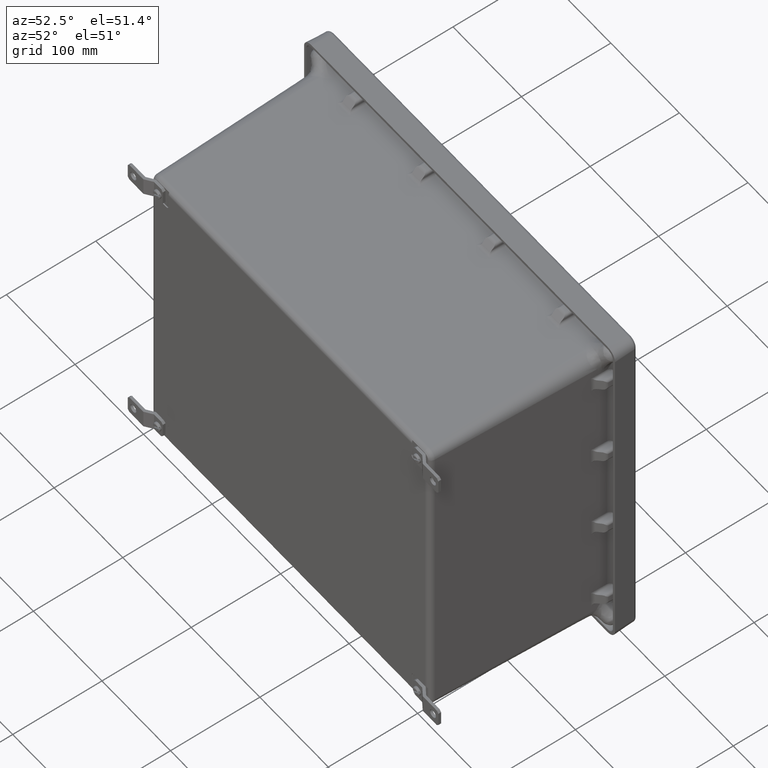
[diagram: clean part render]
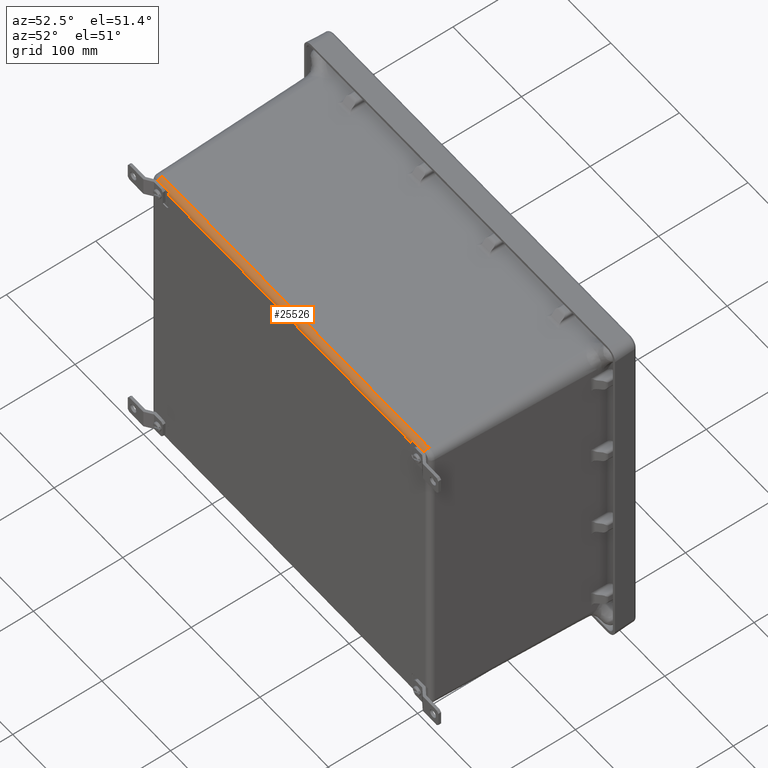
[diagram: same view with one face highlighted and labeled with its STEP entity id]
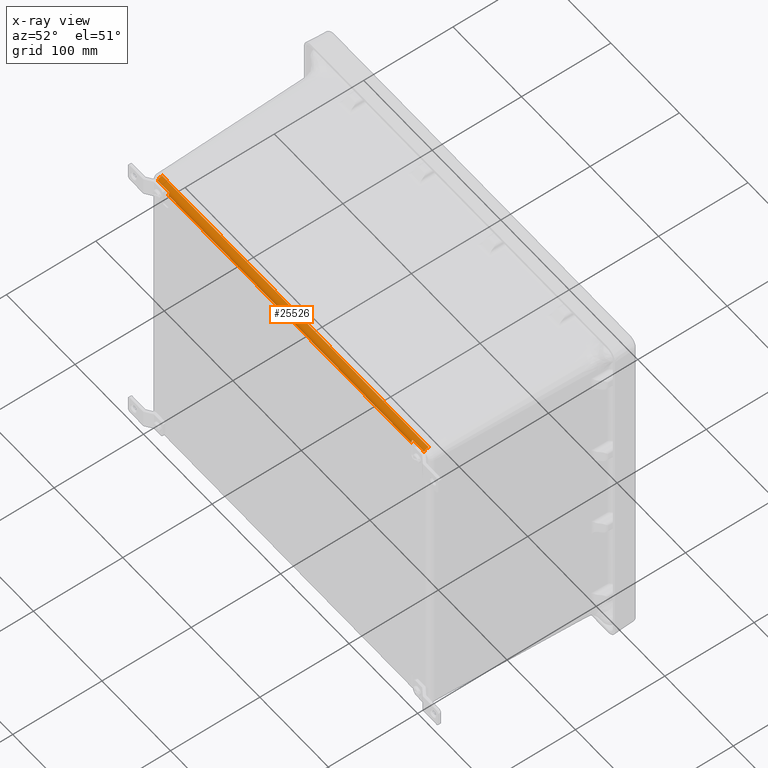
[diagram: x-ray of the same camera — body ghosted, the highlighted face saturated]
A machine part, auxiliary view. The second image highlights one B-rep face of the part: STEP entity #25526.
The next image is the same camera in x-ray: the body ghosted, the highlighted face saturated — about 0% of this face is hidden behind the body in this view.
In plain terms, the highlighted cylindrical surface (edge-blend (fillet) strip) has radius 6.3589 mm, axis along (1, 0, 0).
Its self-contained STEP definition (entity closure, byte-faithful):
#632 = DIRECTION ( 'NONE',  ( -1.000000000000000000, 0.0000000000000000000, 0.0000000000000000000 ) ) ;
#787 = CARTESIAN_POINT ( 'NONE',  ( 7.003556353495952200, -8.086828759219074000, 6.956214141704014900 ) ) ;
#1248 = EDGE_LOOP ( 'NONE', ( #27201, #11127, #38235, #30151, #4451, #39150, #34768, #22328, #7149, #9311 ) ) ;
#1261 = CARTESIAN_POINT ( 'NONE',  ( -6.972486109159942400, -8.117299500526156600, 6.893700618458757900 ) ) ;
#2348 = VERTEX_POINT ( 'NONE', #30682 ) ;
#2646 = CARTESIAN_POINT ( 'NONE',  ( -6.982625934075378500, -8.095400092067073700, 6.942602537483478100 ) ) ;
#3176 = VERTEX_POINT ( 'NONE', #3581 ) ;
#3581 = CARTESIAN_POINT ( 'NONE',  ( 6.971376468912849200, -8.129555159219075100, 6.816330035305039600 ) ) ;
#4155 = CARTESIAN_POINT ( 'NONE',  ( 6.972938806892803300, -8.112777249680180000, 6.906693396633935200 ) ) ;
#4451 = ORIENTED_EDGE ( 'NONE', *, *, #16183, .F. ) ;
#5128 = VERTEX_POINT ( 'NONE', #26295 ) ;
#6149 = CARTESIAN_POINT ( 'NONE',  ( -6.978659044398678900, -8.100049798537586600, 6.934286615420234900 ) ) ;
#6815 = EDGE_CURVE ( 'NONE', #41769, #33632, #19702, .T. ) ;
#6894 =( BOUNDED_CURVE ( )  B_SPLINE_CURVE ( 3, ( #24584, #38605, #7207, #31712 ),
 .UNSPECIFIED., .F., .F. ) 
 B_SPLINE_CURVE_WITH_KNOTS ( ( 4, 4 ),
 ( 3.141592653589793100, 3.455786269056639000 ),
 .UNSPECIFIED. ) 
 CURVE ( )  GEOMETRIC_REPRESENTATION_ITEM ( )  RATIONAL_B_SPLINE_CURVE ( ( 1.000000000000000000, 0.9917904357860588500, 0.9917904357860588500, 1.000000000000000000 ) ) 
 REPRESENTATION_ITEM ( '' )  );
#7116 = CARTESIAN_POINT ( 'NONE',  ( 7.654649388251301400, -7.879205159219074200, 6.816330035305038700 ) ) ;
#7149 = ORIENTED_EDGE ( 'NONE', *, *, #17794, .T. ) ;
#7207 = CARTESIAN_POINT ( 'NONE',  ( 6.971714314729673000, -8.125436124172049200, 6.868661592404324200 ) ) ;
#7650 = CARTESIAN_POINT ( 'NONE',  ( 6.975661914631031900, -8.104637451952134700, 6.925415407708426200 ) ) ;
#8164 = VECTOR ( 'NONE', #8588, 39.37007874015748100 ) ;
#8290 = CARTESIAN_POINT ( 'NONE',  ( -7.654753811748699700, -7.887942248218545100, 7.066527528849270800 ) ) ;
#8582 = EDGE_CURVE ( 'NONE', #19202, #10032, #11799, .T. ) ;
#8588 = DIRECTION ( 'NONE',  ( -1.000000000000000000, -0.0000000000000000000, -0.0000000000000000000 ) ) ;
#9018 = DIRECTION ( 'NONE',  ( 1.000000000000000000, 0.0000000000000000000, 0.0000000000000000000 ) ) ;
#9202 = VECTOR ( 'NONE', #42684, 39.37007874015748100 ) ;
#9311 = ORIENTED_EDGE ( 'NONE', *, *, #42889, .F. ) ;
#9514 = CARTESIAN_POINT ( 'NONE',  ( -7.000145819980889300, -8.086828759219075700, 6.956214141704017500 ) ) ;
#9676 = CARTESIAN_POINT ( 'NONE',  ( -6.974602295865307300, -8.107516257447240800, 6.919264874336311900 ) ) ;
#10032 = VERTEX_POINT ( 'NONE', #40392 ) ;
#10660 = DIRECTION ( 'NONE',  ( -4.364846005455179700E-015, 0.0000000000000000000, 1.000000000000000000 ) ) ;
#11127 = ORIENTED_EDGE ( 'NONE', *, *, #39022, .T. ) ;
#11191 = CARTESIAN_POINT ( 'NONE',  ( 6.979694306122461900, -8.098505463008042000, 6.937128812764942900 ) ) ;
#11799 = LINE ( 'NONE', #30050, #37561 ) ;
#12547 = DIRECTION ( 'NONE',  ( 1.000000000000000000, 0.0000000000000000000, 0.0000000000000000000 ) ) ;
#12668 = CARTESIAN_POINT ( 'NONE',  ( -6.971480892410249400, -8.129555159219075100, 6.816330035305039600 ) ) ;
#13230 = CARTESIAN_POINT ( 'NONE',  ( -6.972661029666634000, -8.115166859949830800, 6.900263444180983400 ) ) ;
#14730 = CARTESIAN_POINT ( 'NONE',  ( 6.984205690217064200, -8.093842431360510400, 6.945224285214958800 ) ) ;
#16095 = CARTESIAN_POINT ( 'NONE',  ( -7.654753811748699700, -8.086828759219074000, 6.956214141704014900 ) ) ;
#16183 = EDGE_CURVE ( 'NONE', #33632, #2348, #28969, .T. ) ;
#17794 = EDGE_CURVE ( 'NONE', #27839, #45174, #44035, .T. ) ;
#17900 = CYLINDRICAL_SURFACE ( 'NONE', #42038, 0.2503500000000002400 ) ;
#18149 = LINE ( 'NONE', #16095, #44899 ) ;
#18307 = CARTESIAN_POINT ( 'NONE',  ( 6.990829619978742700, -8.089539422577726000, 6.952117037906961400 ) ) ;
#18560 = CARTESIAN_POINT ( 'NONE',  ( -7.654753811748699700, -7.879205159219074200, 6.816330035305039600 ) ) ;
#19202 = VERTEX_POINT ( 'NONE', #37542 ) ;
#19702 = CIRCLE ( 'NONE', #25431, 0.2503500000000002400 ) ;
#20165 = CARTESIAN_POINT ( 'NONE',  ( -6.990910503601240200, -8.089550335083712800, 6.952100209996119800 ) ) ;
#21314 = EDGE_CURVE ( 'NONE', #41769, #5128, #18149, .T. ) ;
#21697 = CARTESIAN_POINT ( 'NONE',  ( -7.654753811748699700, -7.879205159219074200, 6.816330035305039600 ) ) ;
#21844 = CARTESIAN_POINT ( 'NONE',  ( 7.000040178806902900, -8.086828759219075700, 6.956214141704016600 ) ) ;
#22315 = CARTESIAN_POINT ( 'NONE',  ( -6.971818738227074000, -8.125436124172049200, 6.868661592404325100 ) ) ;
#22328 = ORIENTED_EDGE ( 'NONE', *, *, #32449, .T. ) ;
#23677 = CARTESIAN_POINT ( 'NONE',  ( -6.984326363841745400, -8.093830362628642300, 6.945244022354012600 ) ) ;
#24079 = EDGE_CURVE ( 'NONE', #3176, #44423, #6894, .T. ) ;
#24120 = CIRCLE ( 'NONE', #38073, 0.2503500000000002400 ) ;
#24584 = CARTESIAN_POINT ( 'NONE',  ( 6.971376468912849200, -8.129555159219075100, 6.816330035305039600 ) ) ;
#25185 = DIRECTION ( 'NONE',  ( 0.0000000000000000000, 0.0000000000000000000, 1.000000000000000000 ) ) ;
#25431 = AXIS2_PLACEMENT_3D ( 'NONE', #21697, #632, #25185 ) ;
#25526 = ADVANCED_FACE ( 'NONE', ( #28282 ), #17900, .T. ) ;
#25797 = CARTESIAN_POINT ( 'NONE',  ( -6.971480892410249400, -8.129555159219075100, 6.816330035305039600 ) ) ;
#26295 = CARTESIAN_POINT ( 'NONE',  ( -7.003660776993351400, -8.086828759219074000, 6.956214141704014900 ) ) ;
#27197 = CARTESIAN_POINT ( 'NONE',  ( -6.979802079511693500, -8.098500911369333400, 6.937137182793960300 ) ) ;
#27201 = ORIENTED_EDGE ( 'NONE', *, *, #24079, .T. ) ;
#27614 = CARTESIAN_POINT ( 'NONE',  ( 6.972381685662542200, -8.117299500526156600, 6.893700618458757900 ) ) ;
#27839 = VERTEX_POINT ( 'NONE', #32985 ) ;
#28282 = FACE_OUTER_BOUND ( 'NONE', #1248, .T. ) ;
#28533 = CARTESIAN_POINT ( 'NONE',  ( 6.972556611989912900, -8.115166788983785300, 6.900263662566485900 ) ) ;
#28687 = CARTESIAN_POINT ( 'NONE',  ( 6.974495973922362400, -8.107521784987572000, 6.919252223926901200 ) ) ;
#28969 = LINE ( 'NONE', #39181, #9202 ) ;
#30050 = CARTESIAN_POINT ( 'NONE',  ( -7.654753811748699700, -8.086828759219074000, 6.956214141704014900 ) ) ;
#30151 = ORIENTED_EDGE ( 'NONE', *, *, #35882, .T. ) ;
#30672 = CARTESIAN_POINT ( 'NONE',  ( -6.975776924285360000, -8.104618134943889300, 6.925454097306350800 ) ) ;
#30682 = CARTESIAN_POINT ( 'NONE',  ( 7.654649388251300500, -7.887942248218545100, 7.066527528849269900 ) ) ;
#31629 = DIRECTION ( 'NONE',  ( -1.000000000000000000, -0.0000000000000000000, -4.373621081654480400E-015 ) ) ;
#31712 = CARTESIAN_POINT ( 'NONE',  ( 6.972381685662542200, -8.117299500526156600, 6.893700618458757900 ) ) ;
#32177 = CARTESIAN_POINT ( 'NONE',  ( 6.978549847436800800, -8.100056102738765400, 6.934275094087837500 ) ) ;
#32449 = EDGE_CURVE ( 'NONE', #5128, #27839, #43655, .T. ) ;
#32985 = CARTESIAN_POINT ( 'NONE',  ( -6.972486109159942400, -8.117299500526156600, 6.893700618458757900 ) ) ;
#33132 = CARTESIAN_POINT ( 'NONE',  ( -7.654753811748701500, -8.129555159219075100, 6.816330035305039600 ) ) ;
#33632 = VERTEX_POINT ( 'NONE', #8290 ) ;
#34208 = CARTESIAN_POINT ( 'NONE',  ( -6.973043143867275100, -8.112776662973400800, 6.906695356609664500 ) ) ;
#34768 = ORIENTED_EDGE ( 'NONE', *, *, #21314, .T. ) ;
#35692 = CARTESIAN_POINT ( 'NONE',  ( 6.982512593104417900, -8.095409014773656200, 6.942587156771813800 ) ) ;
#35882 = EDGE_CURVE ( 'NONE', #10032, #2348, #24120, .T. ) ;
#35946 = B_SPLINE_CURVE_WITH_KNOTS ( 'NONE', 3,
 ( #39047, #28533, #4155, #28687, #7650, #32177, #11191, #35692, #14730, #39195, #18307, #42702, #21844, #787 ),
 .UNSPECIFIED., .F., .F.,
 ( 4, 2, 2, 2, 2, 2, 4 ),
 ( 0.0000000000000000000, 0.0005220647425910482600, 0.001044129485182096500, 0.001305161856477649000, 0.001566194227773201700, 0.001827226599068754400, 0.002088258970364307100 ),
 .UNSPECIFIED. ) ;
#35969 = DIRECTION ( 'NONE',  ( 1.000000000000000000, 0.0000000000000000000, 0.0000000000000000000 ) ) ;
#36129 = LINE ( 'NONE', #33132, #8164 ) ;
#37542 = CARTESIAN_POINT ( 'NONE',  ( 7.003556353495952200, -8.086828759219074000, 6.956214141704014900 ) ) ;
#37561 = VECTOR ( 'NONE', #9018, 39.37007874015748100 ) ;
#37578 = CARTESIAN_POINT ( 'NONE',  ( -7.003660776993351400, -8.086828759219074000, 6.956214141704014900 ) ) ;
#37721 = CARTESIAN_POINT ( 'NONE',  ( -6.972486109159942400, -8.117299500526156600, 6.893700618458757900 ) ) ;
#38073 = AXIS2_PLACEMENT_3D ( 'NONE', #7116, #31629, #10660 ) ;
#38235 = ORIENTED_EDGE ( 'NONE', *, *, #8582, .T. ) ;
#38605 = CARTESIAN_POINT ( 'NONE',  ( 6.971376468912847500, -8.129555159219073300, 6.842657919194739900 ) ) ;
#39022 = EDGE_CURVE ( 'NONE', #44423, #19202, #35946, .T. ) ;
#39047 = CARTESIAN_POINT ( 'NONE',  ( 6.972381685662542200, -8.117299500526156600, 6.893700618458757900 ) ) ;
#39150 = ORIENTED_EDGE ( 'NONE', *, *, #6815, .F. ) ;
#39181 = CARTESIAN_POINT ( 'NONE',  ( -7.654753811748699700, -7.887942248218545100, 7.066527528849269900 ) ) ;
#39195 = CARTESIAN_POINT ( 'NONE',  ( 6.988340563597947000, -8.090920477581489600, 6.949969513839108400 ) ) ;
#39463 = DIRECTION ( 'NONE',  ( 0.0000000000000000000, 0.0000000000000000000, -1.000000000000000000 ) ) ;
#40392 = CARTESIAN_POINT ( 'NONE',  ( 7.654649388251300500, -8.086828759219074000, 6.956214141704013100 ) ) ;
#40691 = CARTESIAN_POINT ( 'NONE',  ( -7.654753811748699700, -8.086828759219074000, 6.956214141704014900 ) ) ;
#41031 = CARTESIAN_POINT ( 'NONE',  ( -6.996727825789850600, -8.087494562157905500, 6.955233447676936200 ) ) ;
#41769 = VERTEX_POINT ( 'NONE', #40691 ) ;
#42038 = AXIS2_PLACEMENT_3D ( 'NONE', #18560, #35969, #39463 ) ;
#42684 = DIRECTION ( 'NONE',  ( 1.000000000000000000, 0.0000000000000000000, 0.0000000000000000000 ) ) ;
#42702 = CARTESIAN_POINT ( 'NONE',  ( 6.996644825972519600, -8.087489605210581800, 6.955240805140408400 ) ) ;
#42889 = EDGE_CURVE ( 'NONE', #3176, #45174, #36129, .T. ) ;
#43169 = CARTESIAN_POINT ( 'NONE',  ( -6.971480892410249400, -8.129555159219073300, 6.842657919194739900 ) ) ;
#43655 = B_SPLINE_CURVE_WITH_KNOTS ( 'NONE', 3,
 ( #37578, #9514, #41031, #20165, #44555, #23677, #2646, #27197, #6149, #30672, #9676, #34208, #13230, #37721 ),
 .UNSPECIFIED., .F., .F.,
 ( 4, 2, 2, 2, 2, 2, 4 ),
 ( 0.0000000000000000000, 0.0002675940815743651700, 0.0005351881631487303400, 0.0008027822447230954500, 0.001070376326297460700, 0.001605564489446228400, 0.002140752652594996400 ),
 .UNSPECIFIED. ) ;
#44035 =( BOUNDED_CURVE ( )  B_SPLINE_CURVE ( 3, ( #1261, #22315, #43169, #25797 ),
 .UNSPECIFIED., .F., .F. ) 
 B_SPLINE_CURVE_WITH_KNOTS ( ( 4, 4 ),
 ( 5.968991691712740400, 6.283185307179586200 ),
 .UNSPECIFIED. ) 
 CURVE ( )  GEOMETRIC_REPRESENTATION_ITEM ( )  RATIONAL_B_SPLINE_CURVE ( ( 1.000000000000000000, 0.9917904357860588500, 0.9917904357860588500, 1.000000000000000000 ) ) 
 REPRESENTATION_ITEM ( '' )  );
#44423 = VERTEX_POINT ( 'NONE', #27614 ) ;
#44555 = CARTESIAN_POINT ( 'NONE',  ( -6.988438429313115200, -8.090925698492865700, 6.949960897178622900 ) ) ;
#44899 = VECTOR ( 'NONE', #12547, 39.37007874015748100 ) ;
#45174 = VERTEX_POINT ( 'NONE', #12668 ) ;